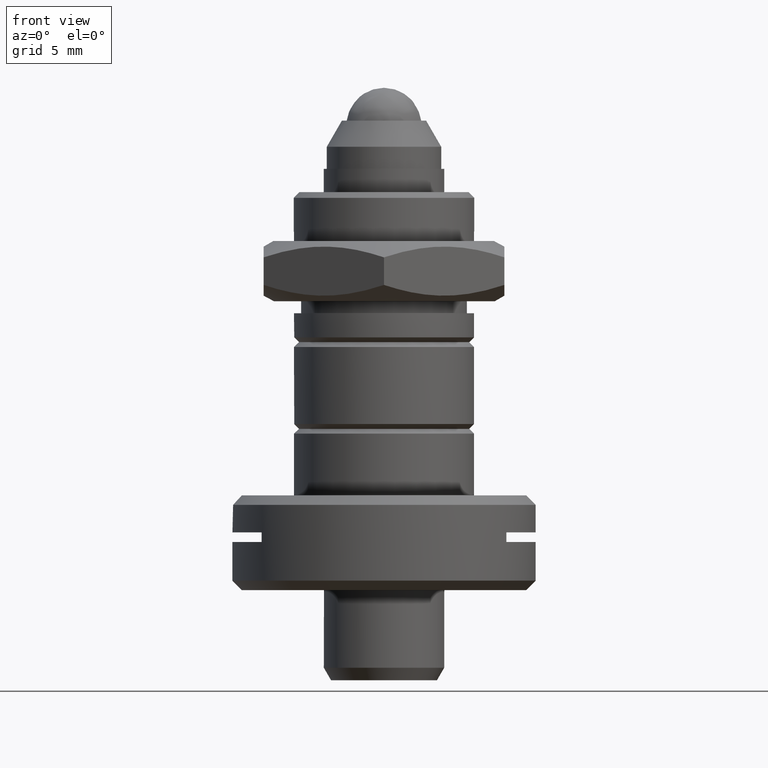
[diagram: clean part render]
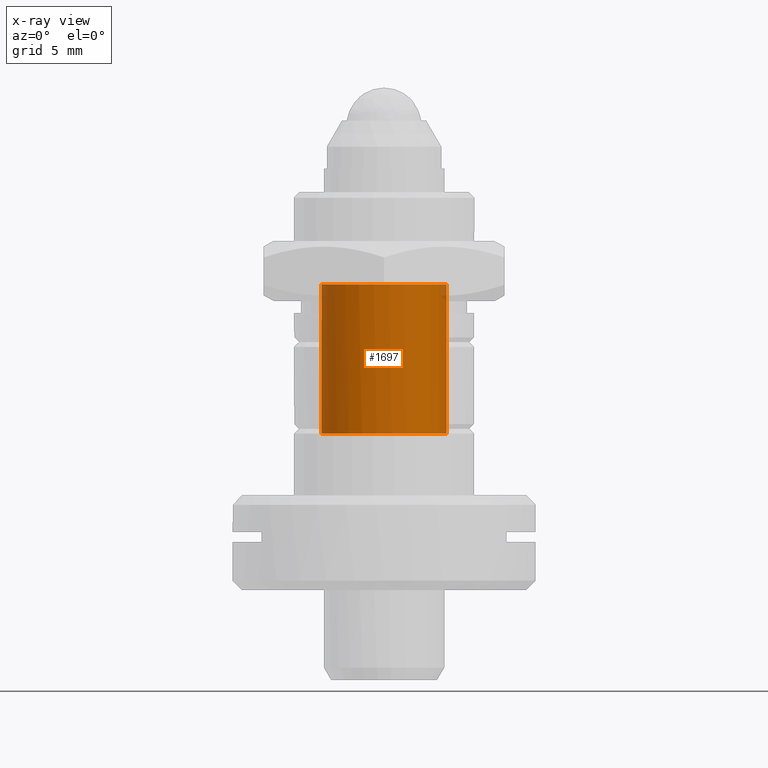
[diagram: x-ray — body ghosted, one internal face saturated and labeled with its STEP entity id]
A machine part, front view, then the same camera in x-ray: the body is ghosted and one INTERNAL B-rep face — a face not visible from any outside direction — is saturated and labeled: STEP entity #1697.
In plain terms, the highlighted cylindrical surface (bore or boss wall) has radius 3.302 mm, axis along (0, 0, 1).
Its self-contained STEP definition (entity closure, byte-faithful):
#6 = CARTESIAN_POINT ( 'NONE',  ( 3.301999999999999602, 0.000000000000000000, -18.23719999999999786 ) ) ;
#40 = CARTESIAN_POINT ( 'NONE',  ( 0.000000000000000000, 0.000000000000000000, -10.36319999999999908 ) ) ;
#275 = DIRECTION ( 'NONE',  ( 1.000000000000000000, 0.000000000000000000, 0.000000000000000000 ) ) ;
#322 = CIRCLE ( 'NONE', #2664, 3.301999999999999602 ) ;
#439 = DIRECTION ( 'NONE',  ( 0.000000000000000000, 0.000000000000000000, 1.000000000000000000 ) ) ;
#457 = VERTEX_POINT ( 'NONE', #6 ) ;
#539 = FACE_OUTER_BOUND ( 'NONE', #2011, .T. ) ;
#584 = DIRECTION ( 'NONE',  ( 1.000000000000000000, 0.000000000000000000, 0.000000000000000000 ) ) ;
#707 = DIRECTION ( 'NONE',  ( 1.000000000000000000, 0.000000000000000000, 0.000000000000000000 ) ) ;
#732 = DIRECTION ( 'NONE',  ( 0.000000000000000000, 0.000000000000000000, 1.000000000000000000 ) ) ;
#904 = EDGE_CURVE ( 'NONE', #1015, #1015, #1365, .T. ) ;
#977 = ORIENTED_EDGE ( 'NONE', *, *, #1662, .F. ) ;
#1004 = CARTESIAN_POINT ( 'NONE',  ( 0.000000000000000000, 0.000000000000000000, 1.337328265961435836 ) ) ;
#1015 = VERTEX_POINT ( 'NONE', #1420 ) ;
#1193 = AXIS2_PLACEMENT_3D ( 'NONE', #1004, #732, #584 ) ;
#1329 = AXIS2_PLACEMENT_3D ( 'NONE', #40, #2140, #275 ) ;
#1365 = CIRCLE ( 'NONE', #1329, 3.301999999999999602 ) ;
#1420 = CARTESIAN_POINT ( 'NONE',  ( 3.301999999999999602, 0.000000000000000000, -10.36319999999999908 ) ) ;
#1465 = EDGE_LOOP ( 'NONE', ( #2186 ) ) ;
#1662 = EDGE_CURVE ( 'NONE', #457, #457, #322, .T. ) ;
#1697 = ADVANCED_FACE ( 'NONE', ( #539, #1777 ), #2181, .F. ) ;
#1777 = FACE_OUTER_BOUND ( 'NONE', #1465, .T. ) ;
#2011 = EDGE_LOOP ( 'NONE', ( #977 ) ) ;
#2140 = DIRECTION ( 'NONE',  ( -0.000000000000000000, -0.000000000000000000, -1.000000000000000000 ) ) ;
#2181 = CYLINDRICAL_SURFACE ( 'NONE', #1193, 3.301999999999999602 ) ;
#2186 = ORIENTED_EDGE ( 'NONE', *, *, #904, .F. ) ;
#2350 = CARTESIAN_POINT ( 'NONE',  ( 0.000000000000000000, 0.000000000000000000, -18.23719999999999786 ) ) ;
#2664 = AXIS2_PLACEMENT_3D ( 'NONE', #2350, #439, #707 ) ;